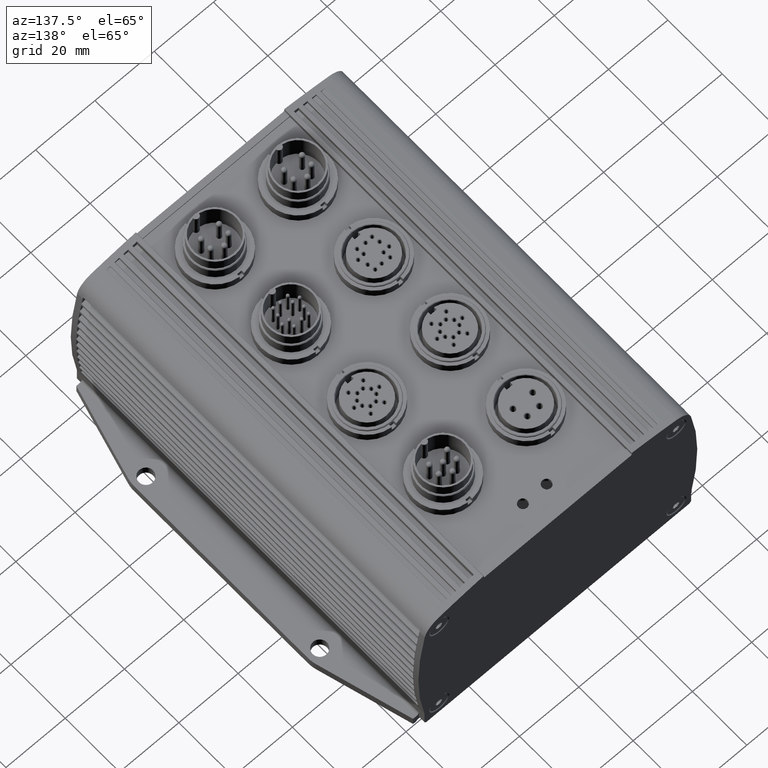
[diagram: clean part render]
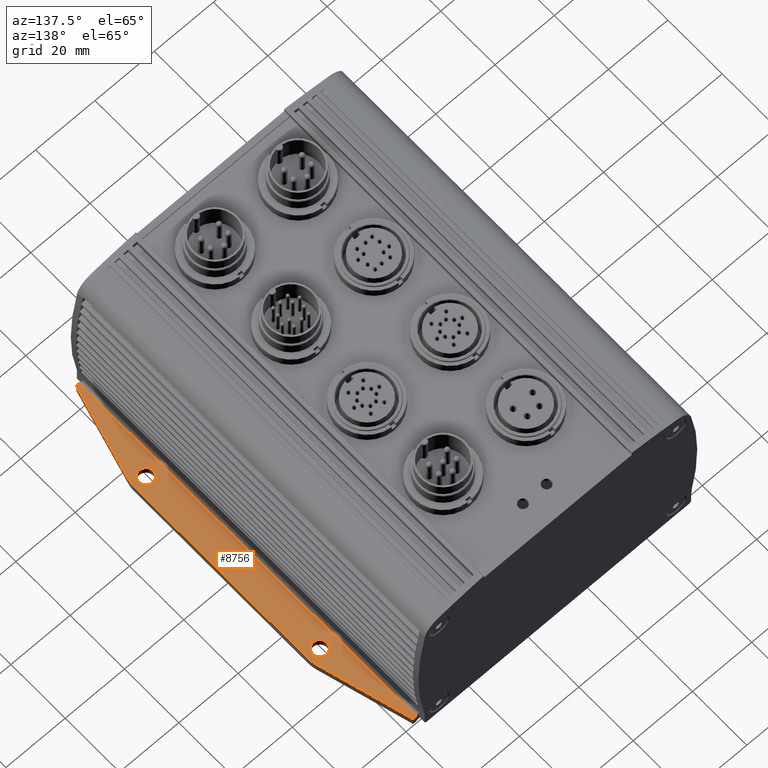
[diagram: same view with one face highlighted and labeled with its STEP entity id]
A machine part, auxiliary view. The second image highlights one B-rep face of the part: STEP entity #8756.
In plain terms, the highlighted planar face has unit normal (0, 0, 1).
Its self-contained STEP definition (entity closure, byte-faithful):
#883=CARTESIAN_POINT('',(48.600000000000001,-19.000000000000021,-24.950466387446085));
#884=VERTEX_POINT('',#883);
#900=CARTESIAN_POINT('',(53.399999999999999,-19.000000000000021,-24.950466387446056));
#901=VERTEX_POINT('',#900);
#908=CARTESIAN_POINT('',(51.0,-19.000000000000021,-24.950466387446056));
#909=DIRECTION('',(0.0,0.0,-1.0));
#910=DIRECTION('',(-1.0,0.0,0.0));
#911=AXIS2_PLACEMENT_3D('',#908,#909,#910);
#912=CIRCLE('',#911,2.400000000000000);
#913=EDGE_CURVE('',#884,#901,#912,.T.);
#925=CARTESIAN_POINT('',(48.600000000000001,44.999999999999979,-24.950466387446085));
#926=VERTEX_POINT('',#925);
#942=CARTESIAN_POINT('',(53.399999999999999,44.999999999999979,-24.950466387446056));
#943=VERTEX_POINT('',#942);
#950=CARTESIAN_POINT('',(51.0,44.999999999999979,-24.950466387446056));
#951=DIRECTION('',(0.0,0.0,-1.0));
#952=DIRECTION('',(-1.0,0.0,0.0));
#953=AXIS2_PLACEMENT_3D('',#950,#951,#952);
#954=CIRCLE('',#953,2.400000000000000);
#955=EDGE_CURVE('',#926,#943,#954,.T.);
#4669=CARTESIAN_POINT('',(46.0,75.0,-24.950466387446077));
#4670=VERTEX_POINT('',#4669);
#4678=CARTESIAN_POINT('',(47.0,75.0,-24.950466387446099));
#4679=VERTEX_POINT('',#4678);
#4680=CARTESIAN_POINT('',(46.0,75.0,-24.950466387446077));
#4681=DIRECTION('',(1.0,0.0,0.0));
#4682=VECTOR('',#4681,1.0);
#4683=LINE('',#4680,#4682);
#4684=EDGE_CURVE('',#4670,#4679,#4683,.T.);
#5662=CARTESIAN_POINT('',(51.0,44.999999999999979,-24.950466387446056));
#5663=DIRECTION('',(0.0,0.0,-1.0));
#5664=DIRECTION('',(-1.0,0.0,0.0));
#5665=AXIS2_PLACEMENT_3D('',#5662,#5663,#5664);
#5666=CIRCLE('',#5665,2.400000000000000);
#5667=EDGE_CURVE('',#943,#926,#5666,.T.);
#5686=CARTESIAN_POINT('',(51.0,-19.000000000000021,-24.950466387446056));
#5687=DIRECTION('',(0.0,0.0,-1.0));
#5688=DIRECTION('',(-1.0,0.0,0.0));
#5689=AXIS2_PLACEMENT_3D('',#5686,#5687,#5688);
#5690=CIRCLE('',#5689,2.400000000000000);
#5691=EDGE_CURVE('',#901,#884,#5690,.T.);
#6263=CARTESIAN_POINT('',(55.0,-19.0,-24.950466387446099));
#6264=VERTEX_POINT('',#6263);
#6271=CARTESIAN_POINT('',(54.631048813334843,-21.691263412444343,-24.950466387446099));
#6272=VERTEX_POINT('',#6271);
#6273=CARTESIAN_POINT('',(45.0,-19.0,-24.950466387446070));
#6274=DIRECTION('',(0.0,0.0,1.0));
#6275=DIRECTION('',(1.0,0.0,0.0));
#6276=AXIS2_PLACEMENT_3D('',#6273,#6274,#6275);
#6277=CIRCLE('',#6276,10.0);
#6278=EDGE_CURVE('',#6272,#6264,#6277,.T.);
#6303=CARTESIAN_POINT('',(47.0,-49.0,-24.950466387446099));
#6304=VERTEX_POINT('',#6303);
#6305=CARTESIAN_POINT('',(47.0,-49.0,-24.950466387446099));
#6306=DIRECTION('',(0.269126341244435,0.963104881333484,0.0));
#6307=VECTOR('',#6306,28.354893757515651);
#6308=LINE('',#6305,#6307);
#6309=EDGE_CURVE('',#6304,#6272,#6308,.T.);
#6416=CARTESIAN_POINT('',(46.0,-49.0,-24.950466387446077));
#6417=VERTEX_POINT('',#6416);
#6418=CARTESIAN_POINT('',(46.0,-49.0,-24.950466387446077));
#6419=DIRECTION('',(1.0,0.0,0.0));
#6420=VECTOR('',#6419,1.0);
#6421=LINE('',#6418,#6420);
#6422=EDGE_CURVE('',#6417,#6304,#6421,.T.);
#8708=CARTESIAN_POINT('',(45.0,75.0,-24.950466387446070));
#8709=DIRECTION('',(0.0,0.0,1.0));
#8710=DIRECTION('',(1.0,0.0,0.0));
#8711=AXIS2_PLACEMENT_3D('',#8708,#8709,#8710);
#8712=PLANE('',#8711);
#8713=ORIENTED_EDGE('',*,*,#6309,.T.);
#8714=ORIENTED_EDGE('',*,*,#6278,.T.);
#8715=CARTESIAN_POINT('',(55.0,45.0,-24.950466387446099));
#8716=VERTEX_POINT('',#8715);
#8717=CARTESIAN_POINT('',(55.0,45.0,-24.950466387446099));
#8718=DIRECTION('',(0.0,-1.0,0.0));
#8719=VECTOR('',#8718,64.0);
#8720=LINE('',#8717,#8719);
#8721=EDGE_CURVE('',#8716,#6264,#8720,.T.);
#8722=ORIENTED_EDGE('',*,*,#8721,.F.);
#8723=CARTESIAN_POINT('',(54.631048813334814,47.691263412444336,-24.950466387446099));
#8724=VERTEX_POINT('',#8723);
#8725=CARTESIAN_POINT('',(45.0,45.0,-24.950466387446070));
#8726=DIRECTION('',(0.0,0.0,1.0));
#8727=DIRECTION('',(1.0,0.0,0.0));
#8728=AXIS2_PLACEMENT_3D('',#8725,#8726,#8727);
#8729=CIRCLE('',#8728,10.0);
#8730=EDGE_CURVE('',#8716,#8724,#8729,.T.);
#8731=ORIENTED_EDGE('',*,*,#8730,.T.);
#8732=CARTESIAN_POINT('',(54.631048813334814,47.691263412444336,-24.950466387446099));
#8733=DIRECTION('',(-0.269126341244434,0.963104881333484,0.0));
#8734=VECTOR('',#8733,28.354893757515651);
#8735=LINE('',#8732,#8734);
#8736=EDGE_CURVE('',#8724,#4679,#8735,.T.);
#8737=ORIENTED_EDGE('',*,*,#8736,.T.);
#8738=ORIENTED_EDGE('',*,*,#4684,.F.);
#8739=CARTESIAN_POINT('',(46.0,-49.0,-24.950466387446077));
#8740=DIRECTION('',(0.0,1.0,0.0));
#8741=VECTOR('',#8740,124.0);
#8742=LINE('',#8739,#8741);
#8743=EDGE_CURVE('',#6417,#4670,#8742,.T.);
#8744=ORIENTED_EDGE('',*,*,#8743,.F.);
#8745=ORIENTED_EDGE('',*,*,#6422,.T.);
#8746=EDGE_LOOP('',(#8713,#8714,#8722,#8731,#8737,#8738,#8744,#8745));
#8747=FACE_OUTER_BOUND('',#8746,.T.);
#8748=ORIENTED_EDGE('',*,*,#5667,.T.);
#8749=ORIENTED_EDGE('',*,*,#955,.T.);
#8750=EDGE_LOOP('',(#8748,#8749));
#8751=FACE_BOUND('',#8750,.T.);
#8752=ORIENTED_EDGE('',*,*,#5691,.T.);
#8753=ORIENTED_EDGE('',*,*,#913,.T.);
#8754=EDGE_LOOP('',(#8752,#8753));
#8755=FACE_BOUND('',#8754,.T.);
#8756=ADVANCED_FACE('',(#8747,#8751,#8755),#8712,.T.);